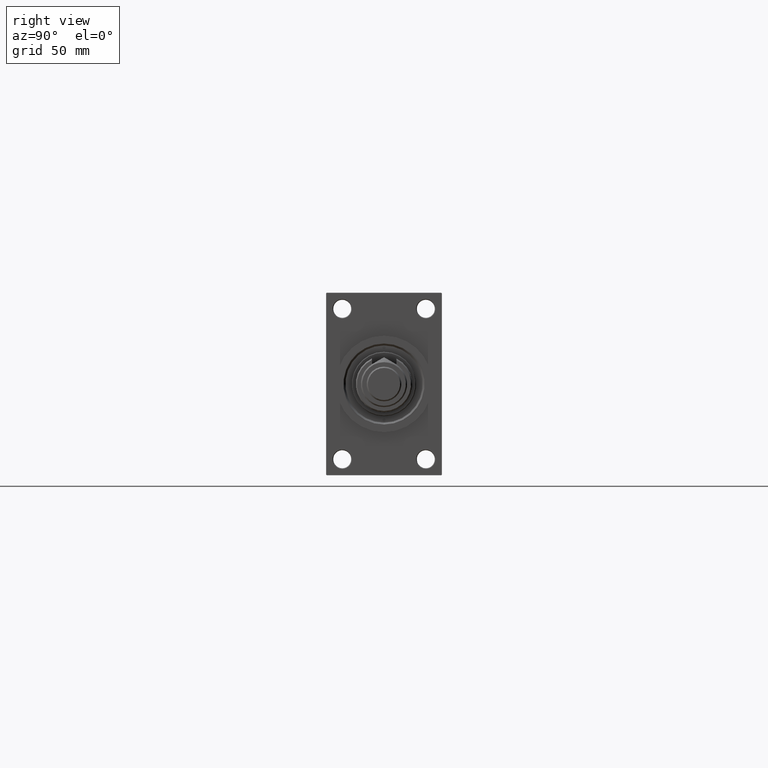
[diagram: clean part render]
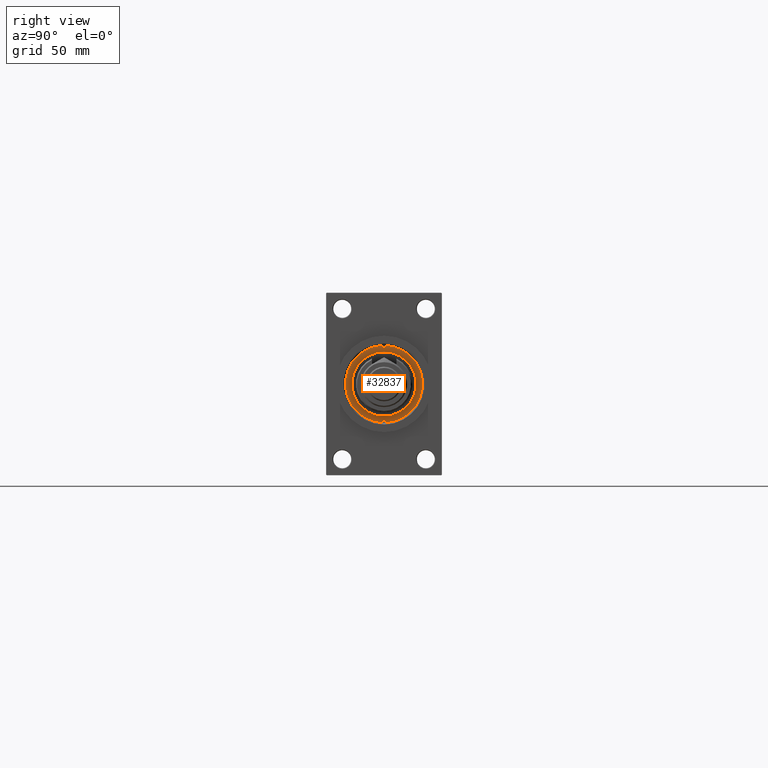
[diagram: same view with one face highlighted and labeled with its STEP entity id]
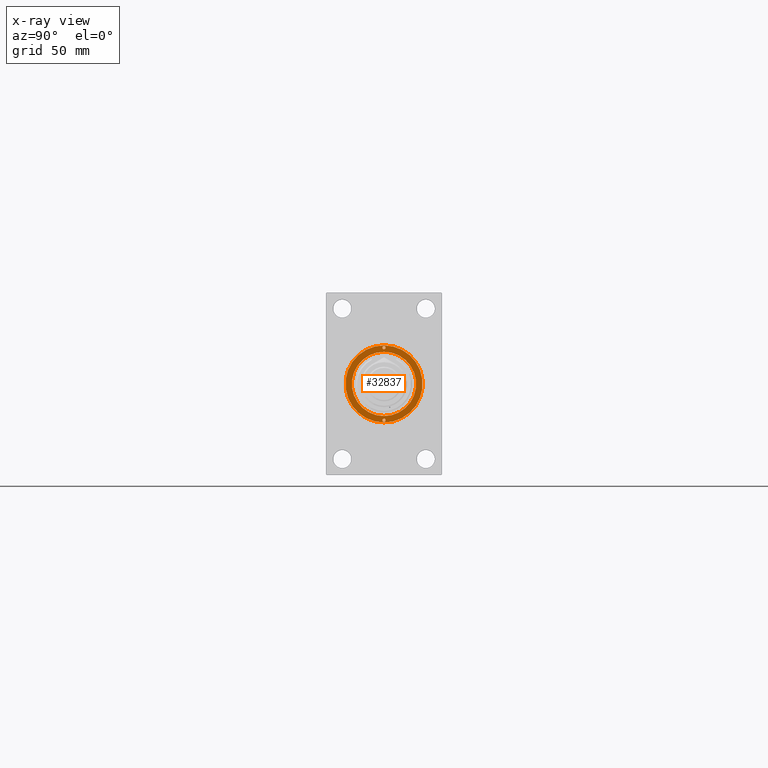
[diagram: x-ray of the same camera — body ghosted, the highlighted face saturated]
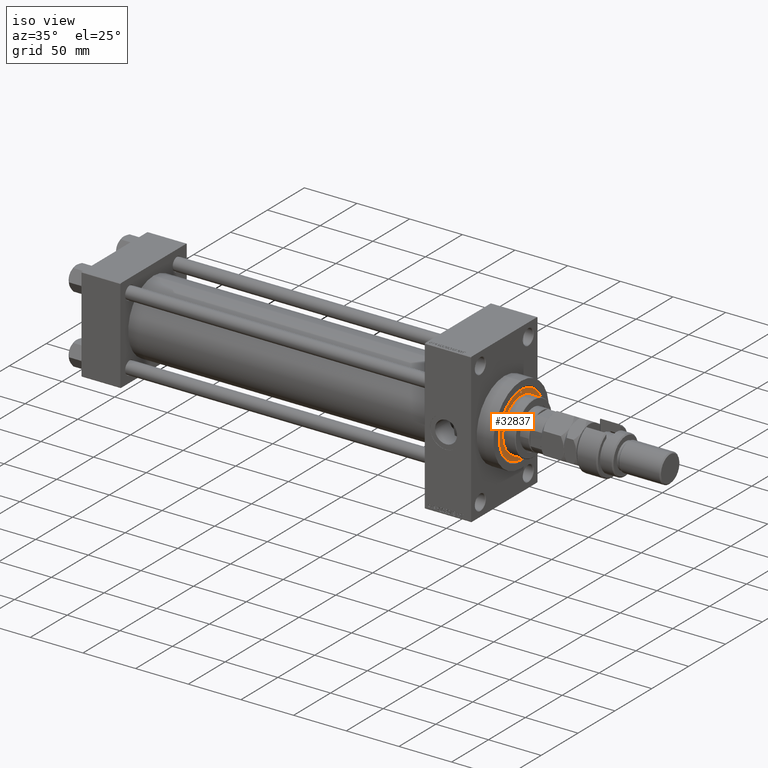
[diagram: same view with one face highlighted and labeled with its STEP entity id]
A machine part, right view. The second image highlights one B-rep face of the part: STEP entity #32837.
The next image is the same camera in x-ray: the body ghosted, the highlighted face saturated — about 0% of this face is hidden behind the body in this view.
A second angle (iso view) of the same face is appended — the face is thin or edge-on in the first view.
In plain terms, the highlighted planar face has unit normal (1, -0, -0).
Its self-contained STEP definition (entity closure, byte-faithful):
#862 = CIRCLE ( 'NONE', #26041, 1.249999999999997558 ) ;
#1234 = ORIENTED_EDGE ( 'NONE', *, *, #9299, .F. ) ;
#1386 = CIRCLE ( 'NONE', #25725, 1.249999999999997558 ) ;
#1501 = CIRCLE ( 'NONE', #45386, 25.00000000000000000 ) ;
#1840 = DIRECTION ( 'NONE',  ( 0.000000000000000000, 0.000000000000000000, 1.000000000000000000 ) ) ;
#3620 = CARTESIAN_POINT ( 'NONE',  ( 29.50000000000000000, 0.000000000000000000, 43.25999999999999801 ) ) ;
#3680 = DIRECTION ( 'NONE',  ( 1.000000000000000000, 0.000000000000000000, -0.000000000000000000 ) ) ;
#3727 = EDGE_CURVE ( 'NONE', #36364, #8461, #32965, .T. ) ;
#4762 = ORIENTED_EDGE ( 'NONE', *, *, #34128, .F. ) ;
#5887 = EDGE_CURVE ( 'NONE', #23941, #18955, #1386, .T. ) ;
#6545 = DIRECTION ( 'NONE',  ( 0.000000000000000000, 0.000000000000000000, 1.000000000000000000 ) ) ;
#8461 = VERTEX_POINT ( 'NONE', #18713 ) ;
#9286 = EDGE_LOOP ( 'NONE', ( #44322, #25932 ) ) ;
#9299 = EDGE_CURVE ( 'NONE', #31871, #36640, #20964, .T. ) ;
#10802 = CARTESIAN_POINT ( 'NONE',  ( -27.00000000000000355, 0.000000000000000000, 43.25999999999999801 ) ) ;
#10859 = DIRECTION ( 'NONE',  ( -0.000000000000000000, -0.000000000000000000, 1.000000000000000000 ) ) ;
#11494 = CIRCLE ( 'NONE', #35053, 30.00000000000000000 ) ;
#13222 = EDGE_LOOP ( 'NONE', ( #48272, #1234 ) ) ;
#13653 = CARTESIAN_POINT ( 'NONE',  ( 0.000000000000000000, 0.000000000000000000, 43.25999999999999801 ) ) ;
#15447 = CARTESIAN_POINT ( 'NONE',  ( 28.25000000000000000, 0.000000000000000000, 43.25999999999999801 ) ) ;
#15911 = CARTESIAN_POINT ( 'NONE',  ( -28.25000000000000000, 0.000000000000000000, 43.25999999999999801 ) ) ;
#16132 = ORIENTED_EDGE ( 'NONE', *, *, #5887, .F. ) ;
#17040 = CARTESIAN_POINT ( 'NONE',  ( -30.00000000000000000, 0.000000000000000000, 43.25999999999999801 ) ) ;
#17712 = CARTESIAN_POINT ( 'NONE',  ( -28.25000000000000000, 0.000000000000000000, 43.25999999999999801 ) ) ;
#18669 = FACE_BOUND ( 'NONE', #44472, .T. ) ;
#18713 = CARTESIAN_POINT ( 'NONE',  ( -25.00000000000000000, 0.000000000000000000, 43.25999999999999801 ) ) ;
#18955 = VERTEX_POINT ( 'NONE', #26740 ) ;
#20035 = EDGE_CURVE ( 'NONE', #32440, #26282, #11494, .T. ) ;
#20911 = DIRECTION ( 'NONE',  ( 1.000000000000000000, 0.000000000000000000, 0.000000000000000000 ) ) ;
#20964 = CIRCLE ( 'NONE', #22595, 1.249999999999997558 ) ;
#21678 = CARTESIAN_POINT ( 'NONE',  ( 25.00000000000000000, 3.061616997868383043E-15, 43.25999999999999801 ) ) ;
#21948 = ORIENTED_EDGE ( 'NONE', *, *, #39524, .F. ) ;
#22525 = CARTESIAN_POINT ( 'NONE',  ( 30.00000000000000000, 3.673940397442059178E-15, 43.25999999999999801 ) ) ;
#22595 = AXIS2_PLACEMENT_3D ( 'NONE', #15911, #31448, #43165 ) ;
#23078 = CIRCLE ( 'NONE', #26349, 30.00000000000000000 ) ;
#23514 = EDGE_CURVE ( 'NONE', #36640, #31871, #34480, .T. ) ;
#23544 = EDGE_CURVE ( 'NONE', #26282, #32440, #23078, .T. ) ;
#23941 = VERTEX_POINT ( 'NONE', #3620 ) ;
#25452 = DIRECTION ( 'NONE',  ( -0.000000000000000000, -0.000000000000000000, 1.000000000000000000 ) ) ;
#25725 = AXIS2_PLACEMENT_3D ( 'NONE', #15447, #46505, #39125 ) ;
#25932 = ORIENTED_EDGE ( 'NONE', *, *, #23544, .T. ) ;
#26041 = AXIS2_PLACEMENT_3D ( 'NONE', #44810, #25452, #41253 ) ;
#26282 = VERTEX_POINT ( 'NONE', #22525 ) ;
#26349 = AXIS2_PLACEMENT_3D ( 'NONE', #13653, #6545, #29948 ) ;
#26437 = CARTESIAN_POINT ( 'NONE',  ( 0.000000000000000000, 0.000000000000000000, 43.25999999999999801 ) ) ;
#26740 = CARTESIAN_POINT ( 'NONE',  ( 27.00000000000000355, 1.530808498934188612E-16, 43.25999999999999801 ) ) ;
#27068 = FACE_OUTER_BOUND ( 'NONE', #9286, .T. ) ;
#28566 = CARTESIAN_POINT ( 'NONE',  ( 0.000000000000000000, 0.000000000000000000, 43.25999999999999801 ) ) ;
#29948 = DIRECTION ( 'NONE',  ( 1.000000000000000000, 0.000000000000000000, 0.000000000000000000 ) ) ;
#30149 = FACE_BOUND ( 'NONE', #37377, .T. ) ;
#30644 = PLANE ( 'NONE',  #35548 ) ;
#30893 = FACE_BOUND ( 'NONE', #13222, .T. ) ;
#31448 = DIRECTION ( 'NONE',  ( -0.000000000000000000, -0.000000000000000000, 1.000000000000000000 ) ) ;
#31871 = VERTEX_POINT ( 'NONE', #47985 ) ;
#32039 = AXIS2_PLACEMENT_3D ( 'NONE', #17712, #10859, #37077 ) ;
#32433 = DIRECTION ( 'NONE',  ( 0.000000000000000000, 0.000000000000000000, 1.000000000000000000 ) ) ;
#32440 = VERTEX_POINT ( 'NONE', #17040 ) ;
#32837 = ADVANCED_FACE ( 'NONE', ( #30893, #30149, #18669, #27068 ), #30644, .T. ) ;
#32965 = CIRCLE ( 'NONE', #35465, 25.00000000000000000 ) ;
#33449 = CARTESIAN_POINT ( 'NONE',  ( 0.000000000000000000, 0.000000000000000000, 43.25999999999999801 ) ) ;
#34128 = EDGE_CURVE ( 'NONE', #8461, #36364, #1501, .T. ) ;
#34480 = CIRCLE ( 'NONE', #32039, 1.249999999999997558 ) ;
#35053 = AXIS2_PLACEMENT_3D ( 'NONE', #26437, #49121, #37915 ) ;
#35465 = AXIS2_PLACEMENT_3D ( 'NONE', #28566, #1840, #20911 ) ;
#35548 = AXIS2_PLACEMENT_3D ( 'NONE', #38536, #46165, #3680 ) ;
#36364 = VERTEX_POINT ( 'NONE', #21678 ) ;
#36640 = VERTEX_POINT ( 'NONE', #10802 ) ;
#37077 = DIRECTION ( 'NONE',  ( 1.000000000000000000, 0.000000000000000000, 0.000000000000000000 ) ) ;
#37377 = EDGE_LOOP ( 'NONE', ( #16132, #21948 ) ) ;
#37915 = DIRECTION ( 'NONE',  ( 1.000000000000000000, 0.000000000000000000, 0.000000000000000000 ) ) ;
#38536 = CARTESIAN_POINT ( 'NONE',  ( 0.000000000000000000, 0.000000000000000000, 43.25999999999999801 ) ) ;
#39125 = DIRECTION ( 'NONE',  ( 1.000000000000000000, 0.000000000000000000, 0.000000000000000000 ) ) ;
#39161 = ORIENTED_EDGE ( 'NONE', *, *, #3727, .F. ) ;
#39524 = EDGE_CURVE ( 'NONE', #18955, #23941, #862, .T. ) ;
#41253 = DIRECTION ( 'NONE',  ( 1.000000000000000000, 0.000000000000000000, 0.000000000000000000 ) ) ;
#43165 = DIRECTION ( 'NONE',  ( 1.000000000000000000, 0.000000000000000000, 0.000000000000000000 ) ) ;
#44322 = ORIENTED_EDGE ( 'NONE', *, *, #20035, .T. ) ;
#44472 = EDGE_LOOP ( 'NONE', ( #4762, #39161 ) ) ;
#44635 = DIRECTION ( 'NONE',  ( 1.000000000000000000, 0.000000000000000000, 0.000000000000000000 ) ) ;
#44810 = CARTESIAN_POINT ( 'NONE',  ( 28.25000000000000000, 0.000000000000000000, 43.25999999999999801 ) ) ;
#45386 = AXIS2_PLACEMENT_3D ( 'NONE', #33449, #32433, #44635 ) ;
#46165 = DIRECTION ( 'NONE',  ( 0.000000000000000000, 0.000000000000000000, 1.000000000000000000 ) ) ;
#46505 = DIRECTION ( 'NONE',  ( -0.000000000000000000, -0.000000000000000000, 1.000000000000000000 ) ) ;
#47985 = CARTESIAN_POINT ( 'NONE',  ( -29.50000000000000000, 1.530808498934188612E-16, 43.25999999999999801 ) ) ;
#48272 = ORIENTED_EDGE ( 'NONE', *, *, #23514, .F. ) ;
#49121 = DIRECTION ( 'NONE',  ( 0.000000000000000000, 0.000000000000000000, 1.000000000000000000 ) ) ;